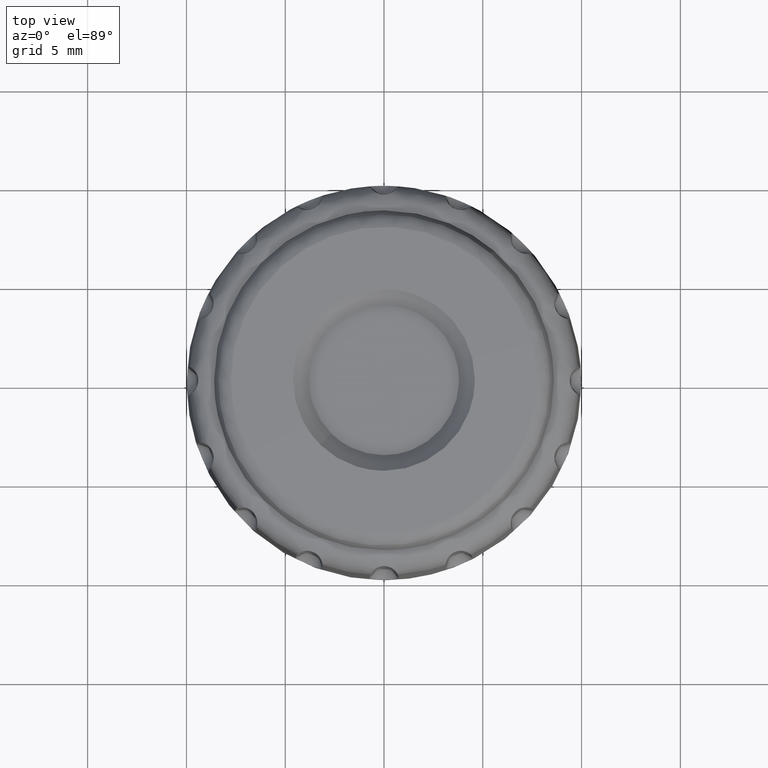
[diagram: clean part render]
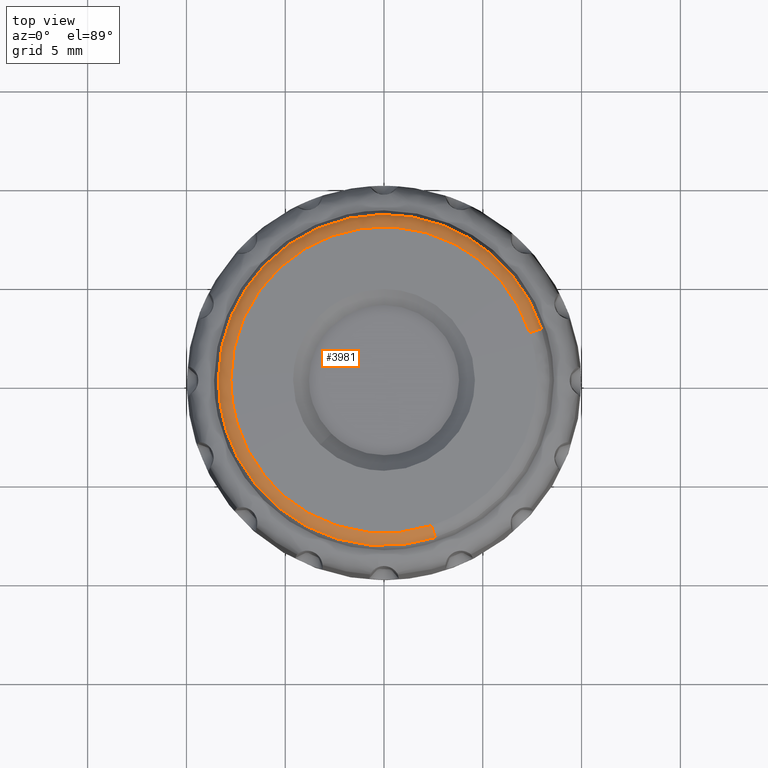
[diagram: same view with one face highlighted and labeled with its STEP entity id]
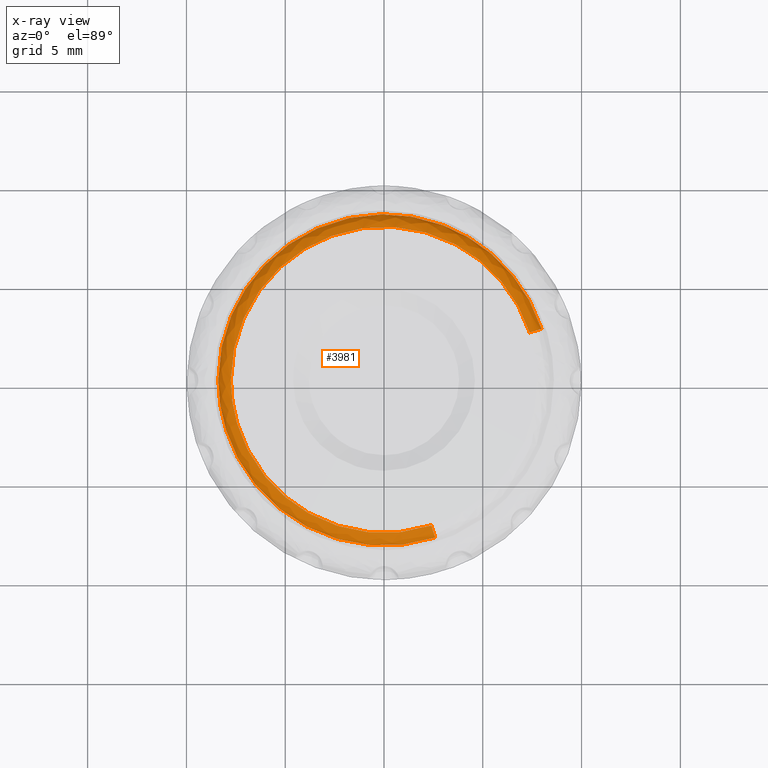
[diagram: x-ray of the same camera — body ghosted, the highlighted face saturated]
A machine part, top view. The second image highlights one B-rep face of the part: STEP entity #3981.
The next image is the same camera in x-ray: the body ghosted, the highlighted face saturated — about 0% of this face is hidden behind the body in this view.
In plain terms, the highlighted face is a freeform B-spline surface patch.
Its self-contained STEP definition (entity closure, byte-faithful):
#1751=CARTESIAN_POINT('',(5.414820789278691,6.402737816984246,13.389540987996870));
#1752=VERTEX_POINT('',#1751);
#1753=CARTESIAN_POINT('',(7.975012141199881,2.591238522452697,13.389540988081491));
#1754=VERTEX_POINT('',#1753);
#1755=CARTESIAN_POINT('',(5.414820789278691,6.402737816984246,13.389540987996870));
#1756=CARTESIAN_POINT('',(5.858797943835190,6.027398257516007,13.389540988007809));
#1757=CARTESIAN_POINT('',(6.465744576746781,5.394689906167577,13.389540988025230));
#1758=CARTESIAN_POINT('',(7.110774999009569,4.469413152084777,13.389540988045120));
#1759=CARTESIAN_POINT('',(7.585397729821674,3.623526826477027,13.389540988063841));
#1760=CARTESIAN_POINT('',(7.844042909677751,2.994412816078205,13.389540988073950));
#1761=CARTESIAN_POINT('',(7.975012141199881,2.591238522452697,13.389540988081491));
#1762=B_SPLINE_CURVE_WITH_KNOTS('',3,(#1755,#1756,#1757,#1758,#1759,#1760,#1761),.UNSPECIFIED.,.F.,.U.,(4,1,1,1,4),(1.300248E-009,1.744093200124009,2.616139565620143,3.379180284909491,4.650914976293656),.UNSPECIFIED.);
#1763=EDGE_CURVE('',#1752,#1754,#1762,.T.);
#1775=CARTESIAN_POINT('',(2.591238522446932,-7.975012141233155,13.389540987999441));
#1776=VERTEX_POINT('',#1775);
#1792=CARTESIAN_POINT('',(-8.385424004413730,0.0,13.389540987873501));
#1793=VERTEX_POINT('',#1792);
#1794=CARTESIAN_POINT('',(2.591238522446932,-7.975012141233155,13.389540987999441));
#1795=CARTESIAN_POINT('',(2.150840184606631,-8.118140230782140,13.389540987990131));
#1796=CARTESIAN_POINT('',(1.407075748618771,-8.293274544253611,13.389540987975170));
#1797=CARTESIAN_POINT('',(0.442768019904611,-8.385245234586643,13.389540987956840));
#1798=CARTESIAN_POINT('',(-0.360422662218849,-8.389189859758153,13.389540987942249));
#1799=CARTESIAN_POINT('',(-1.222911103624554,-8.315462622374849,13.389540987927390));
#1800=CARTESIAN_POINT('',(-2.111700575257125,-8.132419733399606,13.389540987912881));
#1801=CARTESIAN_POINT('',(-3.111731508018871,-7.810214930206219,13.389540987897609));
#1802=CARTESIAN_POINT('',(-4.132111323155856,-7.336033586832577,13.389540987884139));
#1803=CARTESIAN_POINT('',(-5.143092158071477,-6.656903580564635,13.389540987870920));
#1804=CARTESIAN_POINT('',(-5.896240086948487,-5.983460073067912,13.389540987864210));
#1805=CARTESIAN_POINT('',(-6.492294295772771,-5.328239390293215,13.389540987859389));
#1806=CARTESIAN_POINT('',(-7.077487281304602,-4.543279088759297,13.389540987855250));
#1807=CARTESIAN_POINT('',(-7.609723049863790,-3.587412034827918,13.389540987854980));
#1808=CARTESIAN_POINT('',(-7.969642732523397,-2.654285199689397,13.389540987856821));
#1809=CARTESIAN_POINT('',(-8.192367188119849,-1.839734990267931,13.389540987860540));
#1810=CARTESIAN_POINT('',(-8.344254080575063,-0.998169205696722,13.389540987863761));
#1811=CARTESIAN_POINT('',(-8.385437193532910,-0.360164086122276,13.389540987872801));
#1812=CARTESIAN_POINT('',(-8.385424004413730,0.0,13.389540987873501));
#1813=B_SPLINE_CURVE_WITH_KNOTS('',3,(#1794,#1795,#1796,#1797,#1798,#1799,#1800,#1801,#1802,#1803,#1804,#1805,#1806,#1807,#1808,#1809,#1810,#1811,#1812),.UNSPECIFIED.,.F.,.U.,(4,1,1,1,1,1,1,1,1,1,1,1,1,1,1,1,4),(0.000000012403381,1.389212973272874,2.284479370553072,2.901912110733344,3.797182888493314,4.877683539279852,5.618600763470298,6.946070646541882,8.242662898831702,9.261421575717176,9.971459797157607,10.897605195156959,12.194207234312890,13.243837823384039,13.892135117397530,14.725669516200259,15.806160796120871),.UNSPECIFIED.);
#1814=EDGE_CURVE('',#1776,#1793,#1813,.T.);
#1816=CARTESIAN_POINT('',(-6.082571662882845,5.772144982579827,13.389540987836011));
#1817=VERTEX_POINT('',#1816);
#1818=CARTESIAN_POINT('',(-8.385424004413730,0.0,13.389540987873501));
#1819=CARTESIAN_POINT('',(-8.385432363866944,0.315002352025082,13.389540987869580));
#1820=CARTESIAN_POINT('',(-8.351748860384024,0.911846492738721,13.389540987862810));
#1821=CARTESIAN_POINT('',(-8.187327784177013,1.911020613981264,13.389540987852740));
#1822=CARTESIAN_POINT('',(-7.852473253388840,3.042884733572736,13.389540987843910));
#1823=CARTESIAN_POINT('',(-7.312053595320521,4.167847305091009,13.389540987837581));
#1824=CARTESIAN_POINT('',(-6.687189021543218,5.088832495050282,13.389540987835510));
#1825=CARTESIAN_POINT('',(-6.276581924229221,5.567704731867745,13.389540987835870));
#1826=CARTESIAN_POINT('',(-6.082571662882845,5.772144982579827,13.389540987836011));
#1827=B_SPLINE_CURVE_WITH_KNOTS('',3,(#1818,#1819,#1820,#1821,#1822,#1823,#1824,#1825,#1826),.UNSPECIFIED.,.F.,.U.,(4,1,1,1,1,1,4),(1.780050E-009,0.945007184320353,1.790543417051001,3.033980228268161,4.476357355603799,5.520843813091637,6.366376057589907),.UNSPECIFIED.);
#1828=EDGE_CURVE('',#1793,#1817,#1827,.T.);
#1930=CARTESIAN_POINT('',(-6.082571662882845,5.772144982579827,13.389540987836011));
#1931=CARTESIAN_POINT('',(-5.798193146268898,6.071845054984311,13.389540987836490));
#1932=CARTESIAN_POINT('',(-5.148227033655748,6.662529259320812,13.389540987838680));
#1933=CARTESIAN_POINT('',(-4.177921388379580,7.299649455771348,13.389540987845139));
#1934=CARTESIAN_POINT('',(-3.297957220224288,7.722461685275533,13.389540987852760));
#1935=CARTESIAN_POINT('',(-2.460897759307073,8.034044216770168,13.389540987861171));
#1936=CARTESIAN_POINT('',(-1.577503198906378,8.256740489297853,13.389540987871490));
#1937=CARTESIAN_POINT('',(-0.592377337894754,8.381257720977503,13.389540987884221));
#1938=CARTESIAN_POINT('',(0.284761099842074,8.395607458014261,13.389540987897020));
#1939=CARTESIAN_POINT('',(1.207737162089847,8.315011493436794,13.389540987911600));
#1940=CARTESIAN_POINT('',(2.035938210867271,8.150155480891183,13.389540987925660));
#1941=CARTESIAN_POINT('',(2.873426022293745,7.891128638485301,13.389540987941331));
#1942=CARTESIAN_POINT('',(3.576209161744580,7.598500458724018,13.389540987955041));
#1943=CARTESIAN_POINT('',(4.466847219507625,7.124427733569511,13.389540987974319));
#1944=CARTESIAN_POINT('',(5.048910652330118,6.712247492233748,13.389540987987200));
#1945=CARTESIAN_POINT('',(5.414820789278691,6.402737816984246,13.389540987996870));
#1946=B_SPLINE_CURVE_WITH_KNOTS('',3,(#1930,#1931,#1932,#1933,#1934,#1935,#1936,#1937,#1938,#1939,#1940,#1941,#1942,#1943,#1944,#1945),.UNSPECIFIED.,.F.,.U.,(4,1,1,1,1,1,1,1,1,1,1,1,1,4),(5.993391E-009,1.239444652587261,2.627632993357310,3.470460774030908,4.164554368809856,5.304852184720239,6.197257899503998,7.139231200595713,7.932476491432305,8.973616632878063,9.667710622536337,10.560115777009420,11.254209222373330,12.691968227201739),.UNSPECIFIED.);
#1947=EDGE_CURVE('',#1817,#1752,#1946,.T.);
#3870=CARTESIAN_POINT('',(2.384432738010506,-7.338529383276644,13.850021461449433));
#3871=CARTESIAN_POINT('',(-4.954096645266138,-9.722962121287150,13.850021461449431));
#3872=CARTESIAN_POINT('',(-7.338529383276644,-2.384432738010506,13.850021461449433));
#3873=CARTESIAN_POINT('',(-9.722962121287150,4.954096645266138,13.850021461449431));
#3874=CARTESIAN_POINT('',(-2.384432738010506,7.338529383276643,13.850021461449433));
#3875=CARTESIAN_POINT('',(4.954096645266135,9.722962121287152,13.850021461449431));
#3876=CARTESIAN_POINT('',(7.338529383276643,2.384432738010506,13.850021461449433));
#3877=CARTESIAN_POINT('',(2.547726514274300,-7.841095950206901,13.858679516513732));
#3878=CARTESIAN_POINT('',(-5.293369435932601,-10.388822464481200,13.858679516513732));
#3879=CARTESIAN_POINT('',(-7.841095950206901,-2.547726514274300,13.858679516513732));
#3880=CARTESIAN_POINT('',(-10.388822464481201,5.293369435932601,13.858679516513732));
#3881=CARTESIAN_POINT('',(-2.547726514274300,7.841095950206901,13.858679516513732));
#3882=CARTESIAN_POINT('',(5.293369435932601,10.388822464481201,13.858679516513732));
#3883=CARTESIAN_POINT('',(7.841095950206901,2.547726514274301,13.858679516513732));
#3884=CARTESIAN_POINT('',(2.595016775354920,-7.986640408203442,13.352820429975322));
#3885=CARTESIAN_POINT('',(-5.391623632848524,-10.581657183558359,13.352820429975326));
#3886=CARTESIAN_POINT('',(-7.986640408203442,-2.595016775354920,13.352820429975322));
#3887=CARTESIAN_POINT('',(-10.581657183558359,5.391623632848524,13.352820429975326));
#3888=CARTESIAN_POINT('',(-2.595016775354920,7.986640408203442,13.352820429975322));
#3889=CARTESIAN_POINT('',(5.391623632848522,10.581657183558361,13.352820429975326));
#3890=CARTESIAN_POINT('',(7.986640408203442,2.595016775354921,13.352820429975322));
#3898=(BOUNDED_SURFACE()B_SPLINE_SURFACE(2,2,((#3870,#3877,#3884),(#3871,#3878,#3885),(#3872,#3879,#3886),(#3873,#3880,#3887),(#3874,#3881,#3888),(#3875,#3882,#3889),(#3876,#3883,#3890)),.UNSPECIFIED.,.F.,.F.,.U.)B_SPLINE_SURFACE_WITH_KNOTS((3,2,2,3),(3,3),(0.0,13.913683227835390,27.827366455670770,41.741049683506162),(0.0,0.938298221276847),.UNSPECIFIED.)GEOMETRIC_REPRESENTATION_ITEM()RATIONAL_B_SPLINE_SURFACE(((0.921581510504057,0.734435967855164,0.918941395685873),(0.651656535493561,0.519324653217692,0.649789692402511),(0.921581510504057,0.734435967855164,0.918941395685873),(0.651656535493561,0.519324653217692,0.649789692402511),(0.921581510504057,0.734435967855164,0.918941395685873),(0.651656535493561,0.519324653217692,0.649789692402511),(0.921581510504057,0.734435967855164,0.918941395685873)))REPRESENTATION_ITEM('')SURFACE());
#3899=ORIENTED_EDGE('',*,*,#1814,.F.);
#3900=CARTESIAN_POINT('',(2.396358734929993,-7.375233824050735,13.849589605503400));
#3901=VERTEX_POINT('',#3900);
#3902=CARTESIAN_POINT('',(2.396358734929993,-7.375233824050735,13.849589605503400));
#3903=CARTESIAN_POINT('',(2.411007742604625,-7.420318834171113,13.847757483756110));
#3904=CARTESIAN_POINT('',(2.441515573131236,-7.514212282662930,13.833793570124120));
#3905=CARTESIAN_POINT('',(2.488073667501090,-7.657503364221590,13.778304521078031));
#3906=CARTESIAN_POINT('',(2.525956996571690,-7.774096263121303,13.695630790955930));
#3907=CARTESIAN_POINT('',(2.564266551697004,-7.892000950798559,13.568853561537940));
#3908=CARTESIAN_POINT('',(2.582594694534039,-7.948409174402176,13.466575189952881));
#3909=CARTESIAN_POINT('',(2.591238522446932,-7.975012141233155,13.389540987999441));
#3910=B_SPLINE_CURVE_WITH_KNOTS('',3,(#3902,#3903,#3904,#3905,#3906,#3907,#3908,#3909),.UNSPECIFIED.,.F.,.U.,(4,1,1,1,1,4),(0.000000018273828,0.142322384932473,0.297588538692913,0.478726985770970,0.582236244922184,0.828070350576041),.UNSPECIFIED.);
#3911=EDGE_CURVE('',#3901,#1776,#3910,.T.);
#3912=ORIENTED_EDGE('',*,*,#3911,.F.);
#3913=CARTESIAN_POINT('',(-7.754779730184260,0.0,13.849589606709181));
#3914=VERTEX_POINT('',#3913);
#3915=CARTESIAN_POINT('',(2.396358734929993,-7.375233824050735,13.849589605503400));
#3916=CARTESIAN_POINT('',(1.862388311805299,-7.548838179026086,13.849589605619791));
#3917=CARTESIAN_POINT('',(0.906493397784181,-7.747965358432615,13.849589605817631));
#3918=CARTESIAN_POINT('',(-0.362977747622152,-7.770542789229250,13.849589606057490));
#3919=CARTESIAN_POINT('',(-1.300041365648415,-7.659020813424925,13.849589606222580));
#3920=CARTESIAN_POINT('',(-2.201554583400563,-7.456021599712076,13.849589606372319));
#3921=CARTESIAN_POINT('',(-3.118308476417962,-7.128638710463005,13.849589606513151));
#3922=CARTESIAN_POINT('',(-3.995923869691120,-6.666422694936236,13.849589606633851));
#3923=CARTESIAN_POINT('',(-4.821258825642544,-6.100941464304918,13.849589606735320));
#3924=CARTESIAN_POINT('',(-5.533974706989620,-5.466042137472437,13.849589606808260));
#3925=CARTESIAN_POINT('',(-6.166761267595060,-4.727869621146913,13.849589606858469));
#3926=CARTESIAN_POINT('',(-6.687403756053418,-3.964004417432804,13.849589606881979));
#3927=CARTESIAN_POINT('',(-7.129516576856644,-3.108035109321979,13.849589606885431));
#3928=CARTESIAN_POINT('',(-7.477084842187052,-2.138528651436642,13.849589606858990));
#3929=CARTESIAN_POINT('',(-7.701417794402340,-1.103910524498201,13.849589606803230));
#3930=CARTESIAN_POINT('',(-7.754798563448470,-0.380660589777228,13.849589606745100));
#3931=CARTESIAN_POINT('',(-7.754779730184260,0.0,13.849589606709181));
#3932=B_SPLINE_CURVE_WITH_KNOTS('',3,(#3915,#3916,#3917,#3918,#3919,#3920,#3921,#3922,#3923,#3924,#3925,#3926,#3927,#3928,#3929,#3930,#3931),.UNSPECIFIED.,.F.,.U.,(4,1,1,1,1,1,1,1,1,1,1,1,1,1,4),(0.000000012298992,1.684424855663844,2.912063486891478,3.797104446087985,4.510847626303049,5.681384069865681,6.709175864186492,7.480003046033655,8.679090349917056,9.564132570205850,10.392073926221080,11.448413024238940,12.447652487215660,13.475444784111909,14.617423684785379),.UNSPECIFIED.);
#3933=EDGE_CURVE('',#3901,#3914,#3932,.T.);
#3934=ORIENTED_EDGE('',*,*,#3933,.T.);
#3935=CARTESIAN_POINT('',(7.375233818814479,2.396358732976183,13.849589605719940));
#3936=VERTEX_POINT('',#3935);
#3937=CARTESIAN_POINT('',(-7.754779730184260,0.0,13.849589606709181));
#3938=CARTESIAN_POINT('',(-7.754833070909862,0.485343089320584,13.849589606739981));
#3939=CARTESIAN_POINT('',(-7.676791511465619,1.313262457429692,13.849589606786751));
#3940=CARTESIAN_POINT('',(-7.407131864219365,2.351787251200878,13.849589606832270));
#3941=CARTESIAN_POINT('',(-7.042860974373591,3.298782670799183,13.849589606864971));
#3942=CARTESIAN_POINT('',(-6.605764475950173,4.104585596143863,13.849589606883191));
#3943=CARTESIAN_POINT('',(-5.968728000143736,4.984232553185011,13.849589606890810));
#3944=CARTESIAN_POINT('',(-5.263041480367675,5.735990121773101,13.849589606885511));
#3945=CARTESIAN_POINT('',(-4.339646170550662,6.460270875836376,13.849589606861819));
#3946=CARTESIAN_POINT('',(-3.481899237278167,6.949993767084052,13.849589606828189));
#3947=CARTESIAN_POINT('',(-2.679101174773766,7.289454548450672,13.849589606789181));
#3948=CARTESIAN_POINT('',(-2.011339359971830,7.500548375544622,13.849589606752231));
#3949=CARTESIAN_POINT('',(-1.201784784378430,7.677400578386693,13.849589606702370));
#3950=CARTESIAN_POINT('',(-0.333724368138042,7.768547923749311,13.849589606642679));
#3951=CARTESIAN_POINT('',(0.652643692070650,7.746452395266402,13.849589606566850));
#3952=CARTESIAN_POINT('',(1.530307087490399,7.619285690992925,13.849589606492589));
#3953=CARTESIAN_POINT('',(2.359667871892288,7.401226455328923,13.849589606416149));
#3954=CARTESIAN_POINT('',(3.242886617450471,7.069558920559862,13.849589606328470));
#3955=CARTESIAN_POINT('',(4.164400871319800,6.575911502911052,13.849589606227591));
#3956=CARTESIAN_POINT('',(5.036068702721146,5.925676189956968,13.849589606120549));
#3957=CARTESIAN_POINT('',(5.733764987831465,5.248224705650628,13.849589606024781));
#3958=CARTESIAN_POINT('',(6.328195504274718,4.515237445751425,13.849589605933780));
#3959=CARTESIAN_POINT('',(6.913148945676070,3.582036767890362,13.849589605829861));
#3960=CARTESIAN_POINT('',(7.229713525318721,2.844387494858381,13.849589605759579));
#3961=CARTESIAN_POINT('',(7.375233818814479,2.396358732976183,13.849589605719940));
#3962=B_SPLINE_CURVE_WITH_KNOTS('',3,(#3937,#3938,#3939,#3940,#3941,#3942,#3943,#3944,#3945,#3946,#3947,#3948,#3949,#3950,#3951,#3952,#3953,#3954,#3955,#3956,#3957,#3958,#3959,#3960,#3961),.UNSPECIFIED.,.F.,.U.,(4,1,1,1,1,1,1,1,1,1,1,1,1,1,1,1,1,1,1,1,1,1,4),(0.000000018573665,1.456020476668297,2.483820646400886,3.211836458654190,4.496573987283469,5.224590922290762,6.466502233374856,7.579940557922530,8.736205193927104,9.421396338709831,10.192245082791210,10.834616301881089,11.905203207908841,12.804522638511070,13.789489269378750,14.560333265772700,15.373997009830539,16.615912108134701,17.686528491737679,18.628670869700851,19.527981369240141,20.512953550944431,21.926151000448559),.UNSPECIFIED.);
#3963=EDGE_CURVE('',#3914,#3936,#3962,.T.);
#3964=ORIENTED_EDGE('',*,*,#3963,.T.);
#3965=CARTESIAN_POINT('',(7.375233818814479,2.396358732976183,13.849589605719940));
#3966=CARTESIAN_POINT('',(7.440814991260371,2.417667347470800,13.846945150551431));
#3967=CARTESIAN_POINT('',(7.558976989550613,2.456060507835125,13.823437696452119));
#3968=CARTESIAN_POINT('',(7.688877998835597,2.498267904100592,13.756662339909081));
#3969=CARTESIAN_POINT('',(7.795083954005073,2.532776310643631,13.675202274564020));
#3970=CARTESIAN_POINT('',(7.895220840097133,2.565312757143953,13.565525348558211));
#3971=CARTESIAN_POINT('',(7.952592394907260,2.583953905285829,13.454396964777670));
#3972=CARTESIAN_POINT('',(7.975012141199881,2.591238522452697,13.389540988081491));
#3973=B_SPLINE_CURVE_WITH_KNOTS('',3,(#3965,#3966,#3967,#3968,#3969,#3970,#3971,#3972),.UNSPECIFIED.,.F.,.U.,(4,1,1,1,1,4),(0.000000018273847,0.207017602868398,0.375224792659384,0.452845582266609,0.621052772057636,0.828070356652364),.UNSPECIFIED.);
#3974=EDGE_CURVE('',#3936,#1754,#3973,.T.);
#3975=ORIENTED_EDGE('',*,*,#3974,.T.);
#3976=ORIENTED_EDGE('',*,*,#1763,.F.);
#3977=ORIENTED_EDGE('',*,*,#1947,.F.);
#3978=ORIENTED_EDGE('',*,*,#1828,.F.);
#3979=EDGE_LOOP('',(#3899,#3912,#3934,#3964,#3975,#3976,#3977,#3978));
#3980=FACE_OUTER_BOUND('',#3979,.T.);
#3981=ADVANCED_FACE('',(#3980),#3898,.T.);